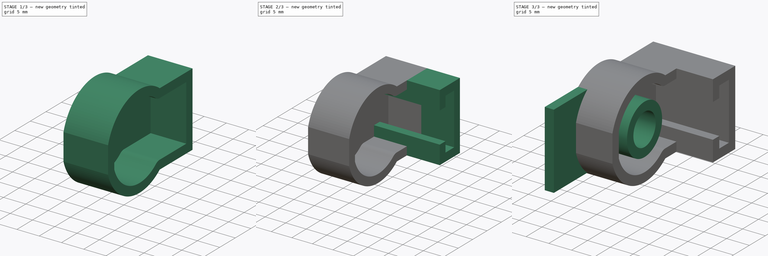
[diagram: build sequence overview — one tinted view per stage of 3, left to right]
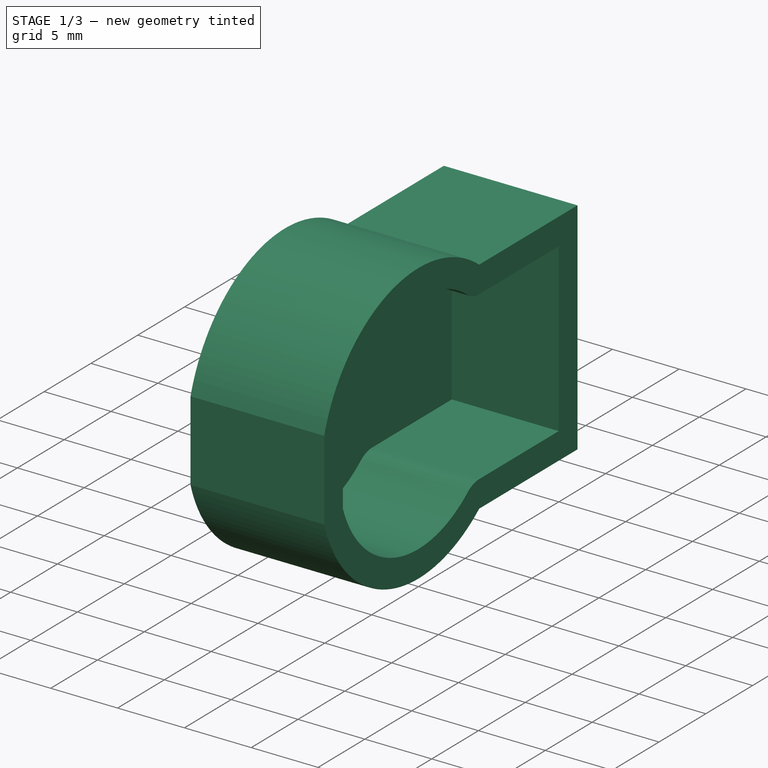
[diagram: stage 1 of 3 — iso view after this stage's code; geometry added in this stage tinted green]
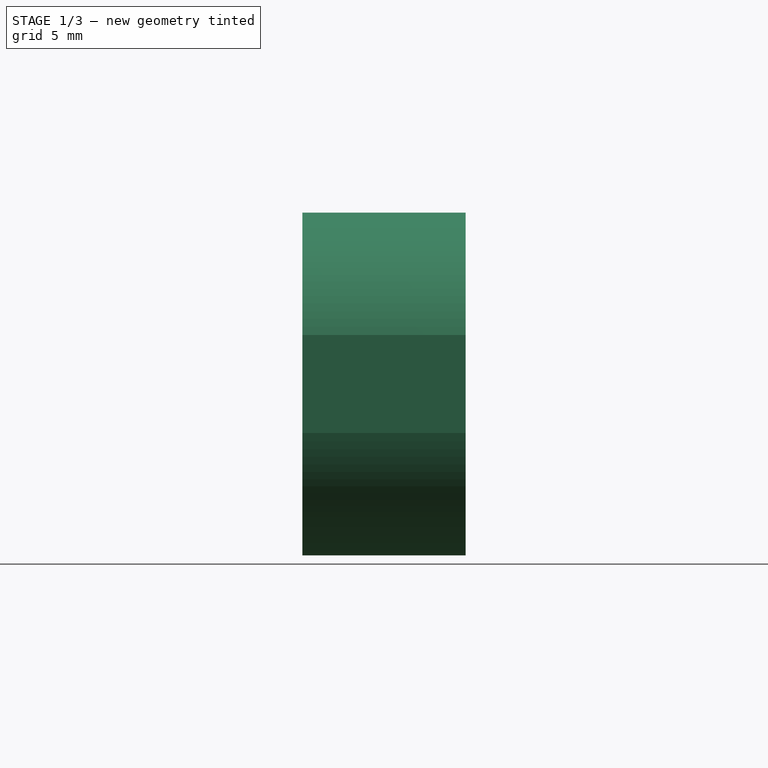
[diagram: stage 1 of 3 — front view after this stage's code; geometry added in this stage tinted green]
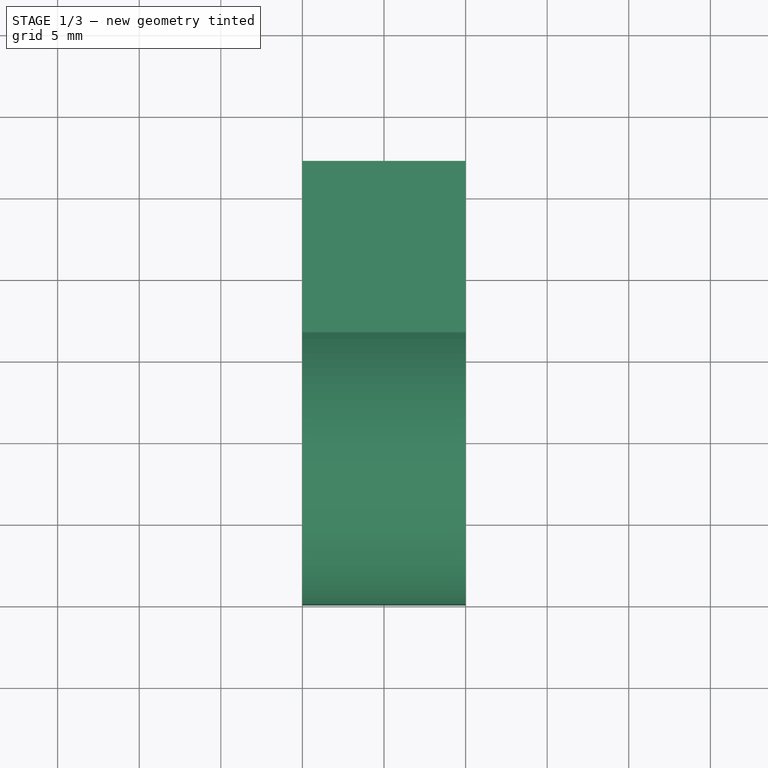
[diagram: stage 1 of 3 — top view after this stage's code; geometry added in this stage tinted green]
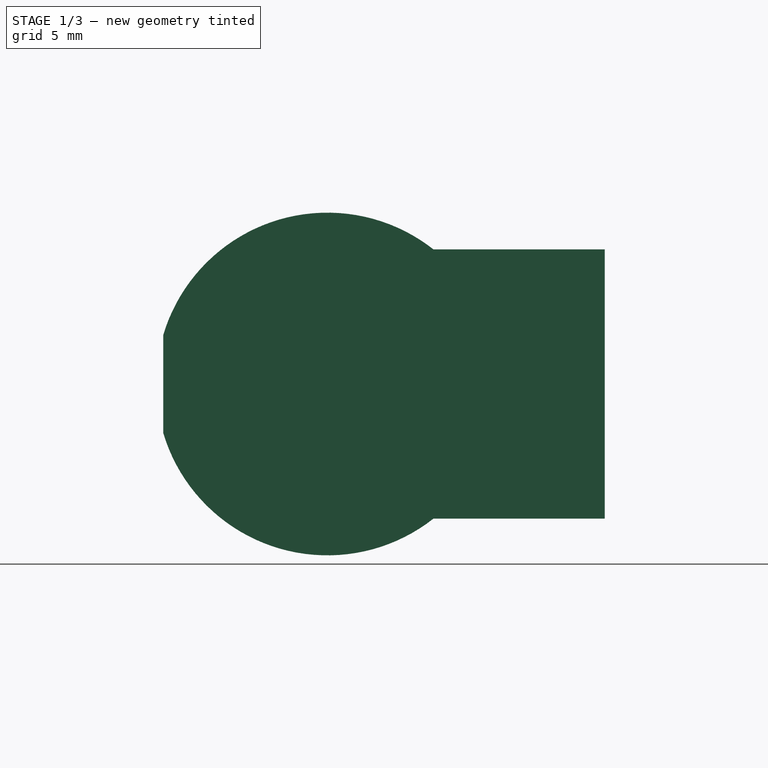
[diagram: stage 1 of 3 — right view after this stage's code; geometry added in this stage tinted green]
FCSTD DOCUMENT  (FreeCAD 2021.1015R24301 +4280 (Git))
Label: Example-2
License: All rights reserved
LicenseURL: http://en.wikipedia.org/wiki/All_rights_reserved
objects: Sketcher::SketchObject×4, PartDesign::Pad×4, Image::ImagePlane×2, PartDesign::Thickness×1, PartDesign::Body×1
note: 20 computed .brp shape members not serialized (recipe doc carries the construction recipe); baked Part::Feature solids carry a one-line shape summary decoded from their .brp

FEATURE [Image::ImagePlane] ImagePlane
  Placement = pos=(0,87,-1.03712e-05) rot=(0.57735,0.57735,0.57735;2.0944rad)
  XSize = 129.894
  YSize = 74.0741
FEATURE [Image::ImagePlane] ImagePlane001
  Placement = pos=(0,-62,11) rot=(0.57735,0.57735,0.57735;2.0944rad)
  XSize = 84.3915
  YSize = 65.0794
FEATURE [Sketcher::SketchObject] Sketch
  FullyConstrained = true
  MapMode = 5
  Placement = pos=(0,0,0) rot=(0.57735,0.57735,0.57735;2.0944rad)
  Support = -> [YZ_Plane]
  sketch-geometry (6):
    g0: ArcOfCircle CenterX=0 CenterY=0 CenterZ=0 NormalX=0 NormalY=0 NormalZ=1 AngleXU=0 Radius=10.5 StartAngle=0.90385 EndAngle=2.85184
    g1: LineSegment StartX=16.9952 StartY=8.25 StartZ=0 EndX=6.49519 EndY=8.25 EndZ=0
    g2: LineSegment StartX=6.49519 StartY=-8.25 StartZ=0 EndX=16.9952 EndY=-8.25 EndZ=0
    g3: LineSegment StartX=16.9952 StartY=-8.25 StartZ=0 EndX=16.9952 EndY=8.25 EndZ=0
    g4: LineSegment StartX=-10.0623 StartY=3 StartZ=0 EndX=-10.0623 EndY=-3 EndZ=0
    g5: ArcOfCircle CenterX=0 CenterY=0 CenterZ=0 NormalX=0 NormalY=0 NormalZ=1 AngleXU=0 Radius=10.5 StartAngle=3.43134 EndAngle=5.37934
  constraints (17):
    c: Coincident(g0,g-1)
    c: Radius(g0) = 10.5
    c: Coincident(g2,g3)
    c: Coincident(g3,g1)
    c: Horizontal(g1)
    c: Horizontal(g2)
    c: Symmetric(g2,g1,g-1)
    c: DistanceY(g3,g3) = 16.5
    c: DistanceX(g1,g1) = 10.5
    c: Coincident(g0,g1)
    c: Coincident(g5,g2)
    c: Vertical(g4)
    c: DistanceY(g4,g4) = 6
    c: Equal(g0,g5)
    c: Coincident(g0,g4)
    c: Coincident(g5,g4)
    c: Coincident(g0,g5)
FEATURE [PartDesign::Pad] Pad
  AddSubType = 0
  CheckUpToFaceLimits = true
  ClaimChildren = false
  Direction = (1,1,1)
  Fit = 0
  FitJoin = 0
  InnerFit = 0
  InnerFitJoin = 0
  InnerTaperAngle = 0
  InnerTaperAngleRev = 0
  Length = 10
  Length2 = 100
  Linearize = true
  NewSolid = false
  Placement = pos=(0,0,0) rot=(0.57735,0.57735,0.57735;2.0944rad)
  Profile = -> Sketch
  Suppress = false
  Type = 0
  _ProfileBasedVersion = 1
FEATURE [PartDesign::Thickness] Thickness
  AddSubType = 0
  Base = -> Pad [Face8]
  BaseFeature = -> Pad
  Intersection = false
  Join = 0
  Mode = 0
  NewSolid = false
  Reversed = true
  SupportTransform = false
  Suppress = false
  Value = 2
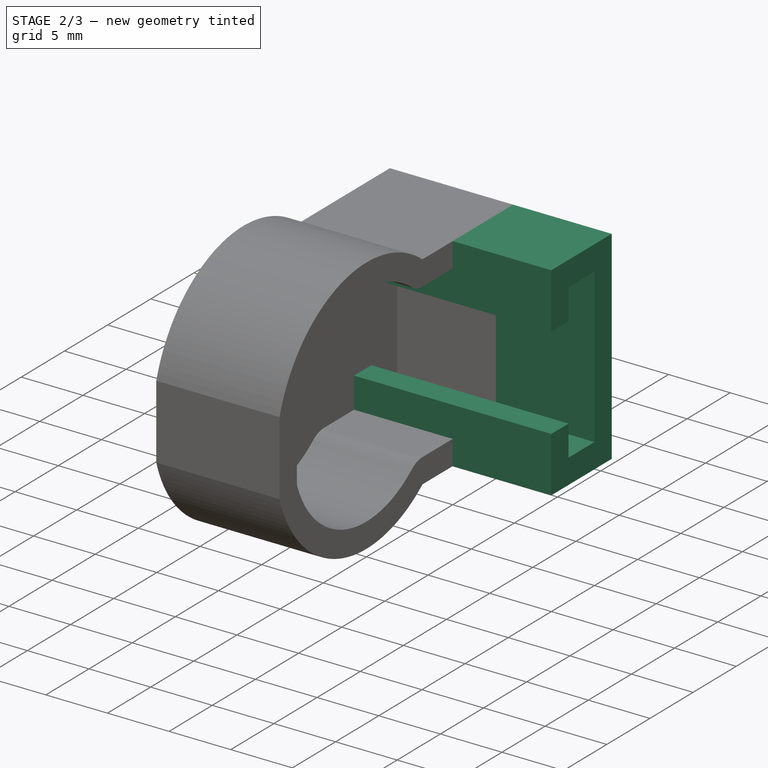
[diagram: stage 2 of 3 — iso view after this stage's code; geometry added in this stage tinted green]
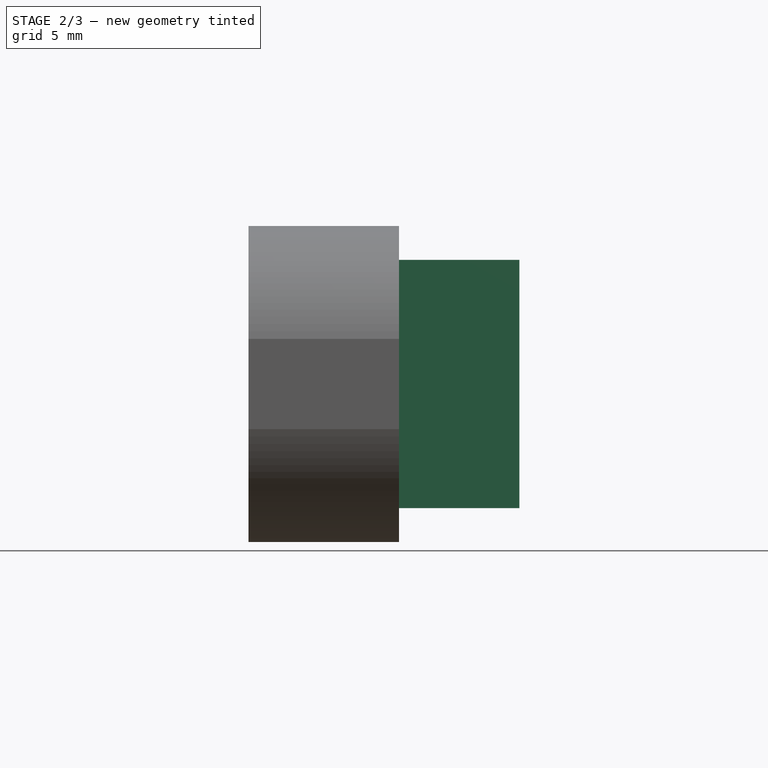
[diagram: stage 2 of 3 — front view after this stage's code; geometry added in this stage tinted green]
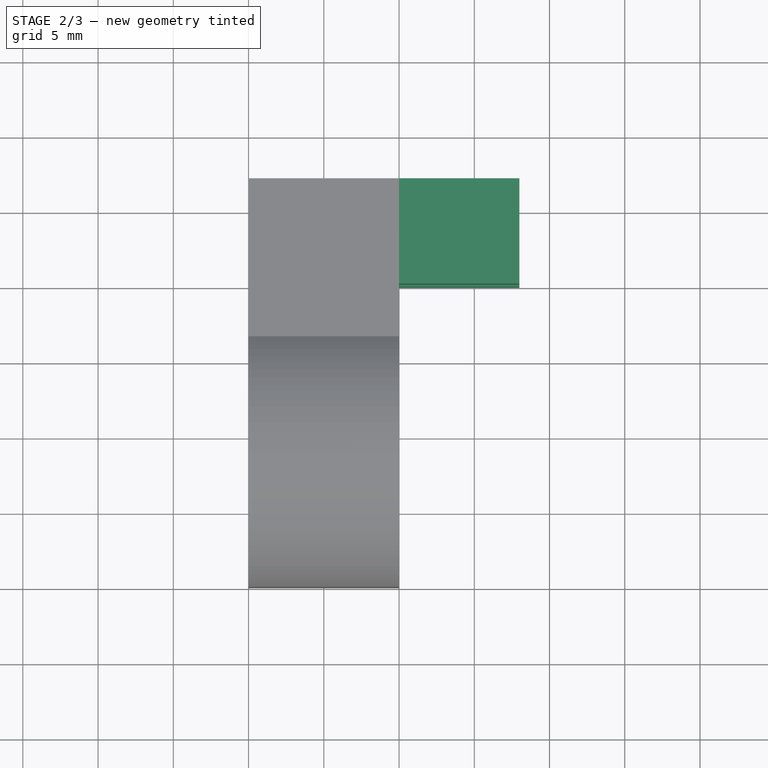
[diagram: stage 2 of 3 — top view after this stage's code; geometry added in this stage tinted green]
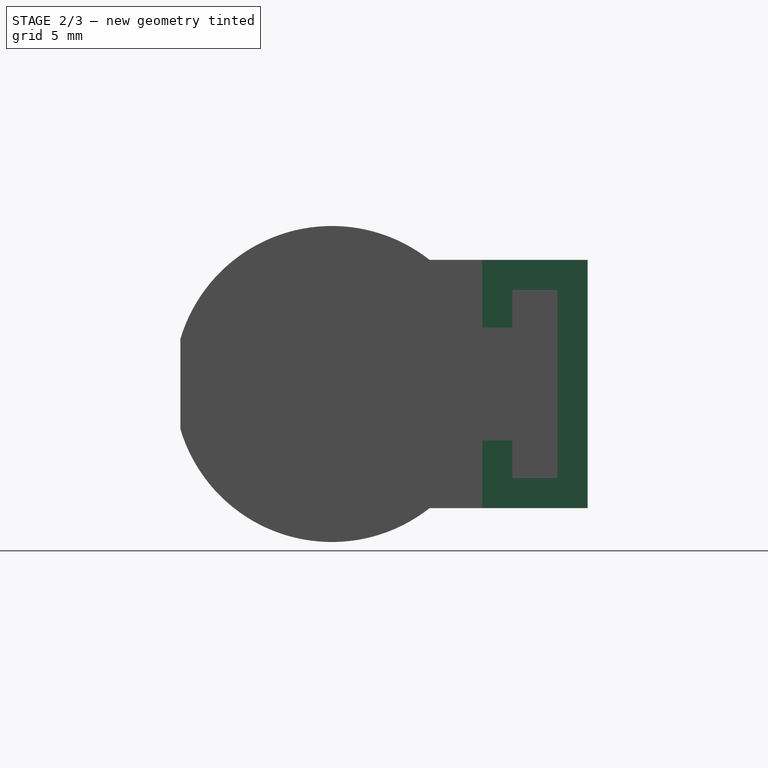
[diagram: stage 2 of 3 — right view after this stage's code; geometry added in this stage tinted green]
FEATURE [Sketcher::SketchObject] Sketch001
  ExternalGeometry = -> [Thickness]
  FullyConstrained = true
  MapMode = 5
  Placement = pos=(0,0,0) rot=(0.57735,0.57735,0.57735;2.0944rad)
  Support = -> [YZ_Plane]
  sketch-geometry (12):
    g0: LineSegment StartX=16.9952 StartY=8.25 StartZ=0 EndX=9.99519 EndY=8.25 EndZ=0
    g1: LineSegment StartX=9.99519 StartY=8.25 StartZ=0 EndX=9.99519 EndY=3.75 EndZ=0
    g2: LineSegment StartX=9.99519 StartY=-8.25 StartZ=0 EndX=16.9952 EndY=-8.25 EndZ=0
    g3: LineSegment StartX=16.9952 StartY=-8.25 StartZ=0 EndX=16.9952 EndY=8.25 EndZ=0
    g4: LineSegment StartX=9.99519 StartY=3.75 StartZ=0 EndX=11.9952 EndY=3.75 EndZ=0
    g5: LineSegment StartX=11.9952 StartY=3.75 StartZ=0 EndX=11.9952 EndY=6.25 EndZ=0
    g6: LineSegment StartX=11.9952 StartY=6.25 StartZ=0 EndX=14.9952 EndY=6.25 EndZ=0
    g7: LineSegment StartX=9.99519 StartY=-3.75 StartZ=0 EndX=11.9952 EndY=-3.75 EndZ=0
    g8: LineSegment StartX=11.9952 StartY=-3.75 StartZ=0 EndX=11.9952 EndY=-6.25 EndZ=0
    g9: LineSegment StartX=11.9952 StartY=-6.25 StartZ=0 EndX=14.9952 EndY=-6.24998 EndZ=0
    g10: LineSegment StartX=14.9952 StartY=-6.24998 StartZ=0 EndX=14.9952 EndY=6.25 EndZ=0
    g11: LineSegment StartX=9.99519 StartY=-3.75 StartZ=0 EndX=9.99519 EndY=-8.25 EndZ=0
  constraints (33):
    c: Coincident(g0,g1)
    c: Coincident(g11,g2)
    c: Coincident(g2,g3)
    c: Coincident(g3,g0)
    c: Horizontal(g0)
    c: Horizontal(g2)
    c: Vertical(g1)
    c: Symmetric(g2,g0,g-1)
    c: Horizontal(g4)
    c: Coincident(g4,g5)
    c: Vertical(g5)
    c: Coincident(g5,g6)
    c: Horizontal(g6)
    c: Horizontal(g7)
    c: Coincident(g7,g8)
    c: Vertical(g8)
    c: Coincident(g8,g9)
    c: Coincident(g9,g10)
    c: Coincident(g10,g6)
    c: Vertical(g10)
    c: Coincident(g1,g4)
    c: Coincident(g11,g7)
    c: Tangent(g1,g11)
    c: DistanceX(g4,g4) = 2
    c: DistanceX(g5,g6) = 3
    c: DistanceX(g6,g0) = 2
    c: DistanceY(g4,g5) = 2.5
    c: Equal(g11,g1)
    c: Equal(g7,g4)
    c: Equal(g8,g5)
    c: Equal(g9,g6)
    c: DistanceY(g-1,g5) = 6.25
    c: Coincident(g0,g-3)
FEATURE [PartDesign::Pad] Pad001
  AddSubType = 0
  BaseFeature = -> Thickness
  CheckUpToFaceLimits = true
  ClaimChildren = false
  Direction = (1,1,1)
  Fit = 0
  FitJoin = 0
  InnerFit = 0
  InnerFitJoin = 0
  InnerTaperAngle = 0
  InnerTaperAngleRev = 0
  Length = 18
  Length2 = 100
  Linearize = true
  NewSolid = false
  Profile = -> Sketch001
  Suppress = false
  Type = 0
  _ProfileBasedVersion = 1
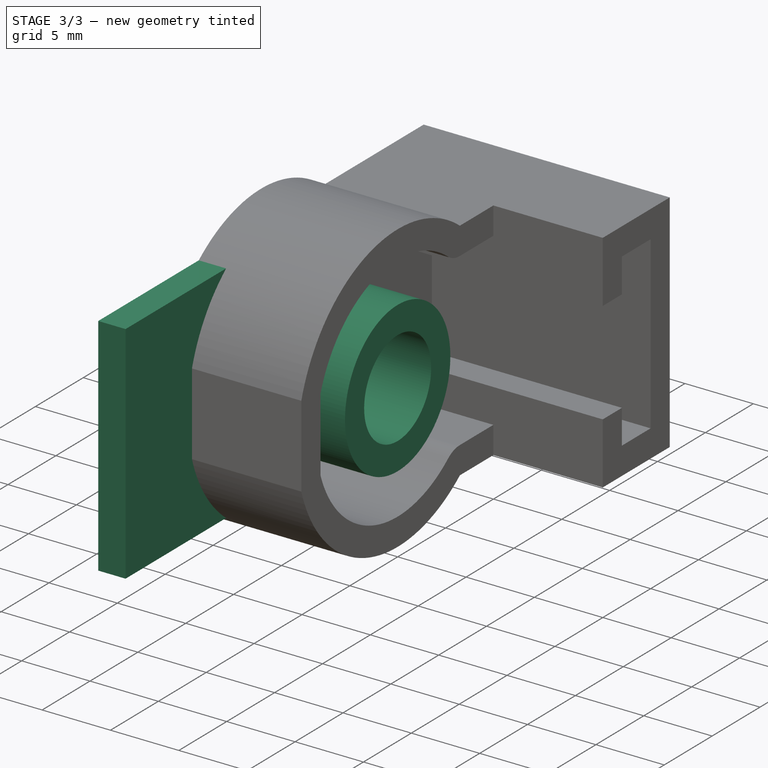
[diagram: stage 3 of 3 — iso view after this stage's code; geometry added in this stage tinted green]
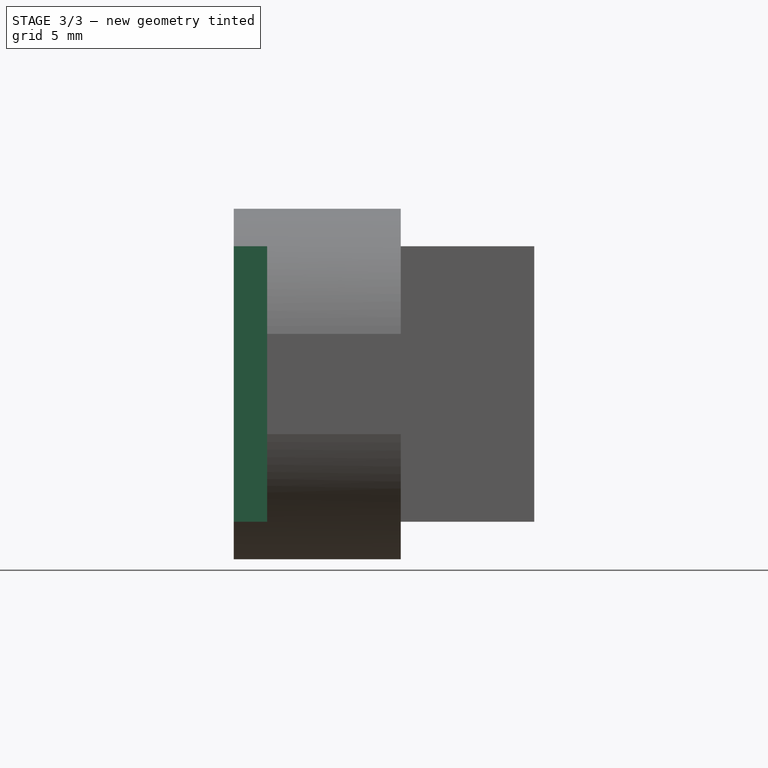
[diagram: stage 3 of 3 — front view after this stage's code; geometry added in this stage tinted green]
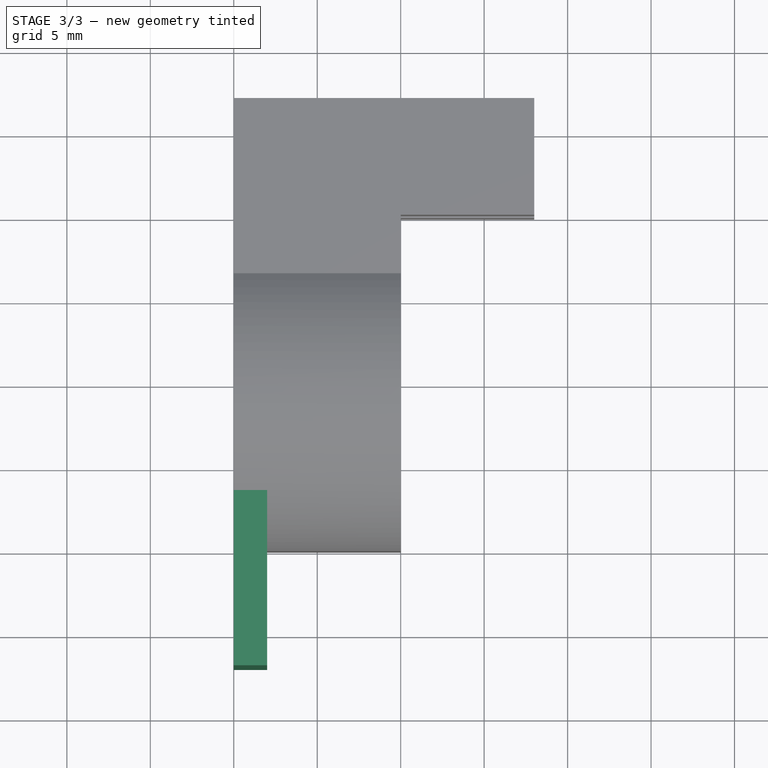
[diagram: stage 3 of 3 — top view after this stage's code; geometry added in this stage tinted green]
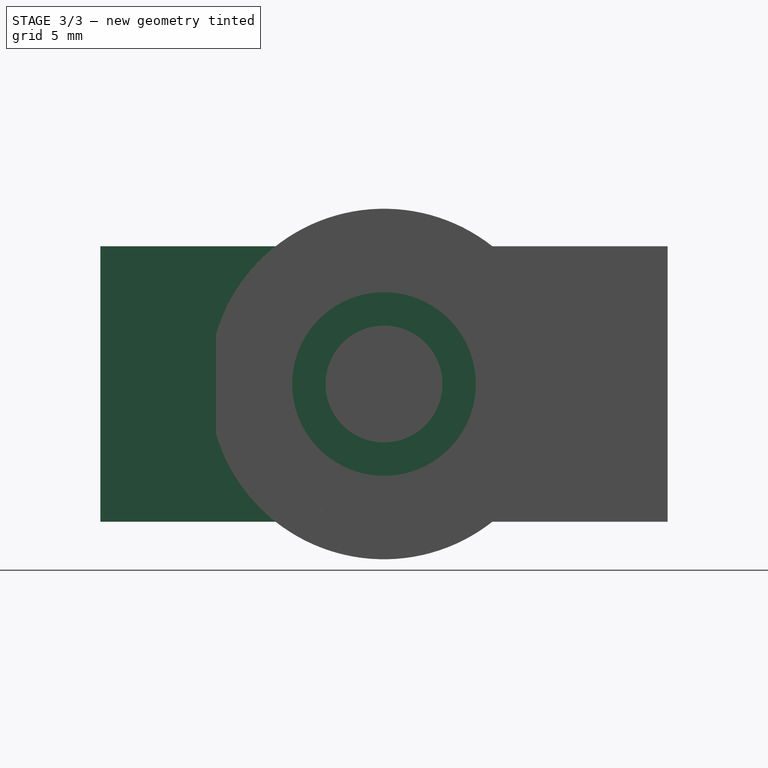
[diagram: stage 3 of 3 — right view after this stage's code; geometry added in this stage tinted green]
FEATURE [Sketcher::SketchObject] Sketch002
  FullyConstrained = true
  MapMode = 5
  Placement = pos=(2,-9e-16,7e-16) rot=(0.57735,0.57735,0.57735;2.0944rad)
  Support = -> [Pad001]
  sketch-geometry (2):
    g0: Circle CenterX=0 CenterY=0 CenterZ=0 NormalX=0 NormalY=0 NormalZ=1 AngleXU=0 Radius=5.5
    g1: Circle CenterX=0 CenterY=0 CenterZ=0 NormalX=0 NormalY=0 NormalZ=1 AngleXU=0 Radius=3.5
  constraints (4):
    c: Coincident(g0,g-1)
    c: Radius(g0) = 5.5
    c: Coincident(g1,g0)
    c: Radius(g1) = 3.5
FEATURE [PartDesign::Pad] Pad002
  AddSubType = 0
  BaseFeature = -> Pad001
  CheckUpToFaceLimits = true
  ClaimChildren = false
  Direction = (1,1,1)
  Fit = 0
  FitJoin = 0
  InnerFit = 0
  InnerFitJoin = 0
  InnerTaperAngle = 0
  InnerTaperAngleRev = 0
  Length = 8
  Length2 = 100
  Linearize = true
  NewSolid = false
  Profile = -> Sketch002
  Suppress = false
  Type = 0
  _ProfileBasedVersion = 1
FEATURE [Sketcher::SketchObject] Sketch003
  ExternalGeometry = -> [Pad002]
  FullyConstrained = true
  MapMode = 5
  Placement = pos=(0,0,0) rot=(0.57735,0.57735,0.57735;2.0944rad)
  Support = -> [YZ_Plane]
  sketch-geometry (4):
    g0: LineSegment StartX=-16.9952 StartY=8.25 StartZ=0 EndX=16.9952 EndY=8.25 EndZ=0
    g1: LineSegment StartX=16.9952 StartY=8.25 StartZ=0 EndX=16.9952 EndY=-8.25 EndZ=0
    g2: LineSegment StartX=16.9952 StartY=-8.25 StartZ=0 EndX=-16.9952 EndY=-8.25 EndZ=0
    g3: LineSegment StartX=-16.9952 StartY=-8.25 StartZ=0 EndX=-16.9952 EndY=8.25 EndZ=0
  constraints (9):
    c: Coincident(g0,g1)
    c: Coincident(g1,g2)
    c: Coincident(g2,g3)
    c: Coincident(g3,g0)
    c: Horizontal(g2)
    c: Vertical(g3)
    c: Symmetric(g0,g1,g-1)
    c: Symmetric(g0,g0,g-2)
    c: Coincident(g-3,g0)
FEATURE [PartDesign::Pad] Pad003
  AddSubType = 0
  BaseFeature = -> Pad002
  CheckUpToFaceLimits = true
  ClaimChildren = false
  Direction = (1,1,1)
  Fit = 0
  FitJoin = 0
  InnerFit = 0
  InnerFitJoin = 0
  InnerTaperAngle = 0
  InnerTaperAngleRev = 0
  Length = 2
  Length2 = 100
  Linearize = true
  NewSolid = false
  Profile = -> Sketch003
  Suppress = false
  Type = 0
  _ProfileBasedVersion = 1
FEATURE [PartDesign::Body] Body
  AutoGroupSolids = false
  ExportMode = 0
  Group = -> [Sketch,Pad,Thickness,Sketch001,Pad001,Sketch002,Pad002,Sketch003,Pad003]
  Origin = -> Origin
  Placement = pos=(0,-24.0416,2.82843) rot=(1,0,0;2.35619rad)
  Tip = -> Pad003
  _ExportChildren = -> [Pad,Thickness,Pad001,Pad002,Pad003]
  _GroupVersion = 1
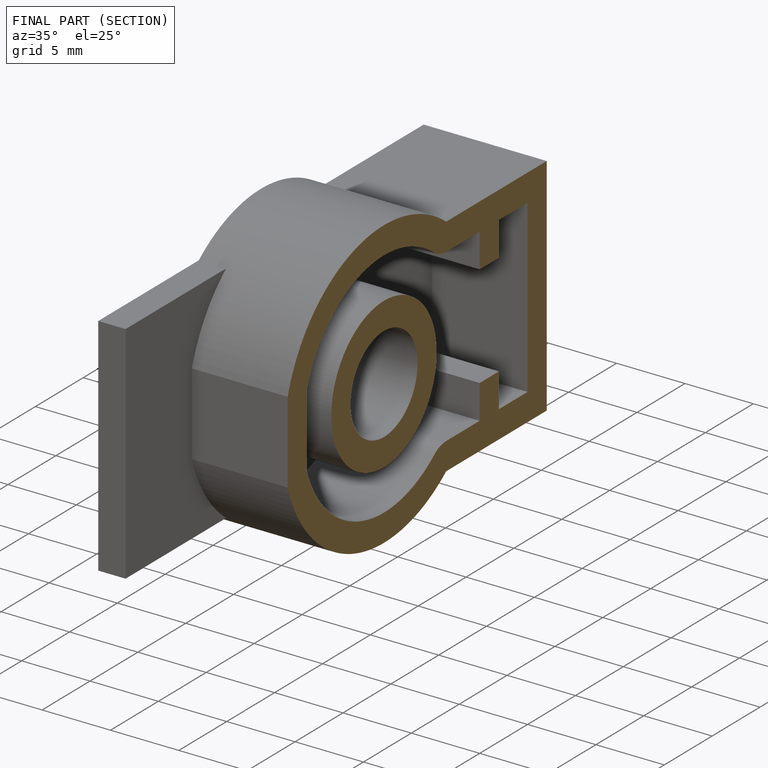
[diagram: finished part — half-section view (interior)]
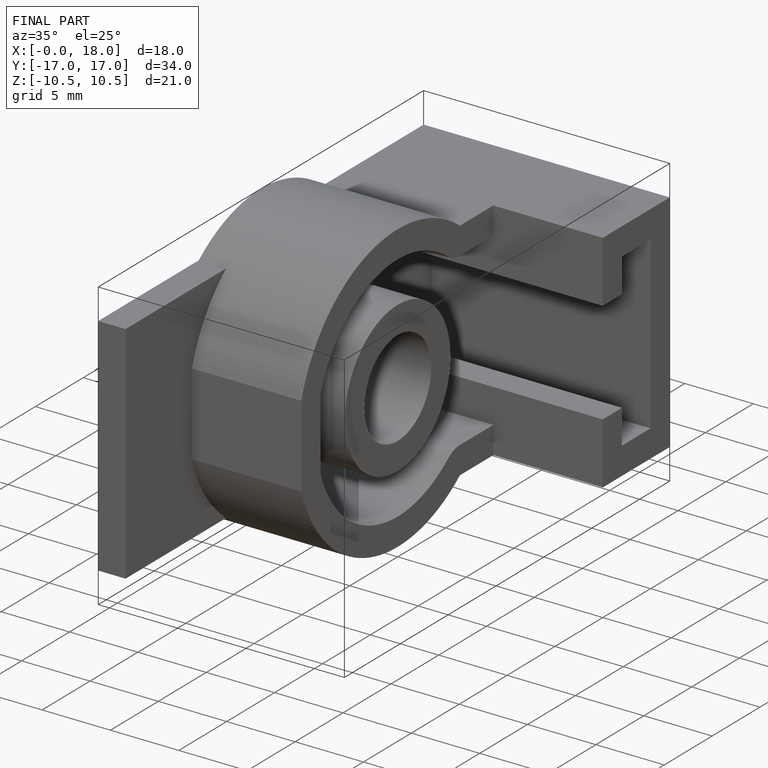
[diagram: finished part — iso view with bounding-box wireframe]
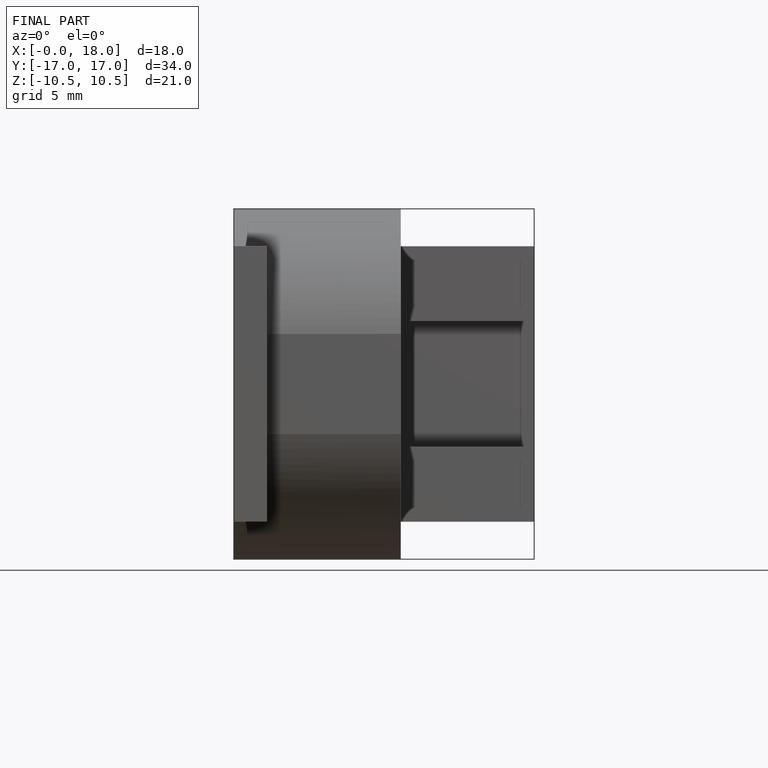
[diagram: finished part — front view with bounding-box wireframe]
